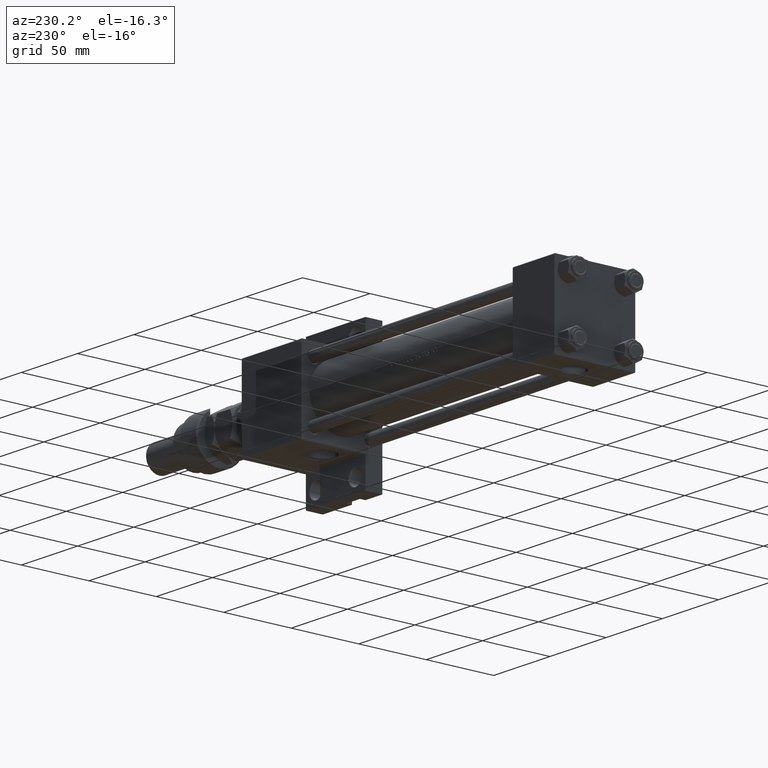
[diagram: clean part render]
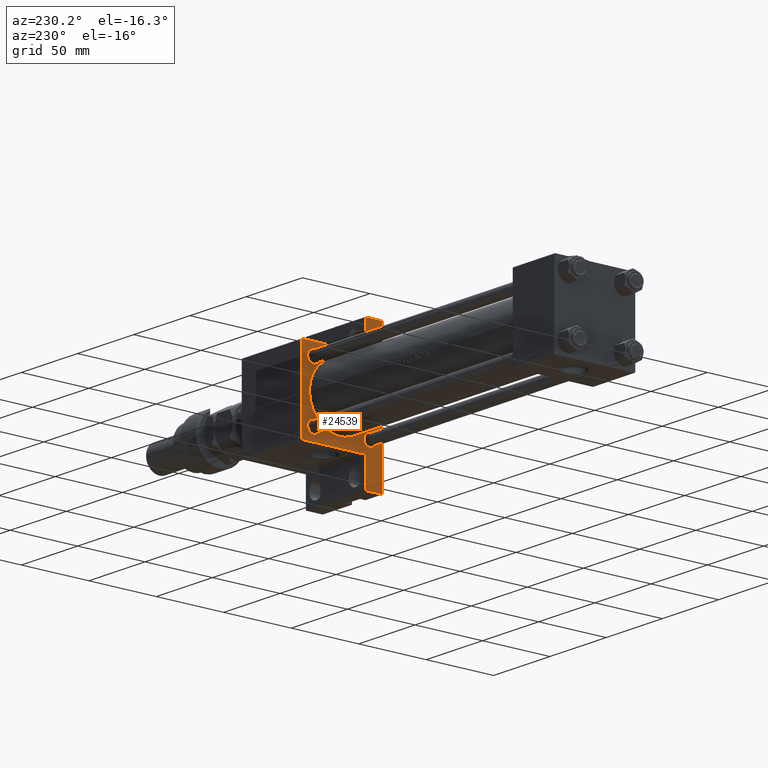
[diagram: same view with one face highlighted and labeled with its STEP entity id]
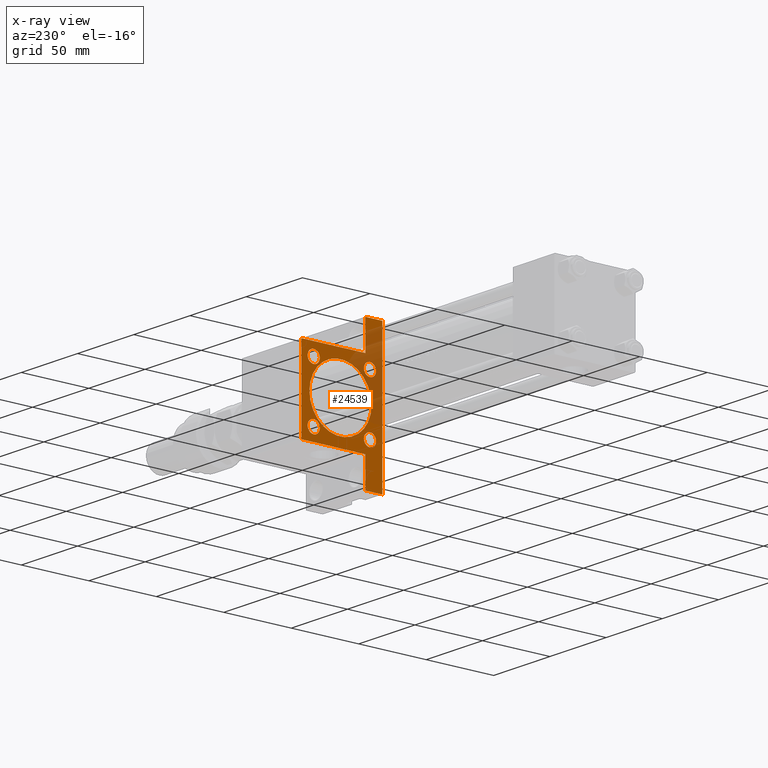
[diagram: x-ray of the same camera — body ghosted, the highlighted face saturated]
A machine part, auxiliary view. The second image highlights one B-rep face of the part: STEP entity #24539.
The next image is the same camera in x-ray: the body ghosted, the highlighted face saturated — about 31% of this face is hidden behind the body in this view.
In plain terms, the highlighted planar face has unit normal (-1, 0, -0).
Its self-contained STEP definition (entity closure, byte-faithful):
#173 = DIRECTION ( 'NONE',  ( 1.000000000000000000, -0.000000000000000000, 0.000000000000000000 ) ) ;
#483 = ORIENTED_EDGE ( 'NONE', *, *, #48150, .T. ) ;
#834 = CARTESIAN_POINT ( 'NONE',  ( 225.0000000000000000, -20.84999999999999076, 25.35000000000001208 ) ) ;
#995 = ORIENTED_EDGE ( 'NONE', *, *, #34506, .T. ) ;
#1176 = EDGE_CURVE ( 'NONE', #34826, #23365, #6389, .T. ) ;
#2941 = DIRECTION ( 'NONE',  ( -0.000000000000000000, 0.000000000000000000, 1.000000000000000000 ) ) ;
#2985 = CIRCLE ( 'NONE', #20336, 4.500000000000007105 ) ;
#3171 = ORIENTED_EDGE ( 'NONE', *, *, #6710, .T. ) ;
#3303 = CARTESIAN_POINT ( 'NONE',  ( 225.0000000000000000, 20.84999999999999787, -25.35000000000000853 ) ) ;
#3347 = CARTESIAN_POINT ( 'NONE',  ( 225.0000000000000000, -29.74999999999916156, 29.75000000000081712 ) ) ;
#3487 = FACE_OUTER_BOUND ( 'NONE', #17612, .T. ) ;
#3573 = EDGE_CURVE ( 'NONE', #20881, #5285, #26196, .T. ) ;
#3882 = DIRECTION ( 'NONE',  ( -0.000000000000000000, 0.7071067811865672237, 0.7071067811865279218 ) ) ;
#4227 = CARTESIAN_POINT ( 'NONE',  ( 225.0000000000000000, 20.84999999999999787, 25.35000000000000853 ) ) ;
#4373 = EDGE_CURVE ( 'NONE', #43402, #7562, #16726, .T. ) ;
#4453 = AXIS2_PLACEMENT_3D ( 'NONE', #20122, #33136, #7628 ) ;
#4509 = CARTESIAN_POINT ( 'NONE',  ( 225.0000000000000000, 2.694222958124176809E-15, -22.00000000000000000 ) ) ;
#4673 = CARTESIAN_POINT ( 'NONE',  ( 225.0000000000000000, 51.49999999999997868, -17.49999999999999645 ) ) ;
#4790 = CARTESIAN_POINT ( 'NONE',  ( 225.0000000000000000, -29.49999999999997158, 29.99999999999999289 ) ) ;
#4802 = VECTOR ( 'NONE', #3882, 1000.000000000000000 ) ;
#4946 = VECTOR ( 'NONE', #47039, 1000.000000000000114 ) ;
#5143 = CARTESIAN_POINT ( 'NONE',  ( 225.0000000000000000, -30.00000000000000000, 29.99999999999999289 ) ) ;
#5282 = DIRECTION ( 'NONE',  ( 0.000000000000000000, 0.000000000000000000, 1.000000000000000000 ) ) ;
#5285 = VERTEX_POINT ( 'NONE', #19863 ) ;
#5292 = CARTESIAN_POINT ( 'NONE',  ( 225.0000000000000000, 29.74999999999999645, 29.74999999999999645 ) ) ;
#6389 = LINE ( 'NONE', #38419, #52940 ) ;
#6576 = ORIENTED_EDGE ( 'NONE', *, *, #33346, .F. ) ;
#6710 = EDGE_CURVE ( 'NONE', #39010, #18106, #18442, .T. ) ;
#7237 = CARTESIAN_POINT ( 'NONE',  ( 225.0000000000000000, -20.84999999999999076, -16.34999999999999787 ) ) ;
#7562 = VERTEX_POINT ( 'NONE', #24100 ) ;
#7600 = EDGE_LOOP ( 'NONE', ( #9804, #34382 ) ) ;
#7628 = DIRECTION ( 'NONE',  ( 0.000000000000000000, 0.000000000000000000, 1.000000000000000000 ) ) ;
#7637 = ORIENTED_EDGE ( 'NONE', *, *, #10593, .T. ) ;
#7766 = VECTOR ( 'NONE', #48545, 1000.000000000000000 ) ;
#8174 = EDGE_LOOP ( 'NONE', ( #29534, #10919 ) ) ;
#8189 = CARTESIAN_POINT ( 'NONE',  ( 225.0000000000000000, -51.50000000000002132, -17.49999999999999645 ) ) ;
#9131 = EDGE_LOOP ( 'NONE', ( #29631, #483 ) ) ;
#9194 = VECTOR ( 'NONE', #52955, 1000.000000000000000 ) ;
#9275 = LINE ( 'NONE', #4673, #30111 ) ;
#9486 = CARTESIAN_POINT ( 'NONE',  ( 225.0000000000000000, -1.224646799147354686E-16, 1.000000000000000888 ) ) ;
#9738 = CARTESIAN_POINT ( 'NONE',  ( 225.0000000000000000, -20.84999999999999076, -20.85000000000000497 ) ) ;
#9804 = ORIENTED_EDGE ( 'NONE', *, *, #4373, .T. ) ;
#10015 = DIRECTION ( 'NONE',  ( 0.000000000000000000, -1.000000000000000000, -1.156482317317871478E-16 ) ) ;
#10536 = DIRECTION ( 'NONE',  ( 1.000000000000000000, -0.000000000000000000, 0.000000000000000000 ) ) ;
#10593 = EDGE_CURVE ( 'NONE', #25722, #51735, #20677, .T. ) ;
#10919 = ORIENTED_EDGE ( 'NONE', *, *, #19832, .T. ) ;
#11103 = ORIENTED_EDGE ( 'NONE', *, *, #37608, .T. ) ;
#11510 = DIRECTION ( 'NONE',  ( 1.000000000000000000, -0.000000000000000000, 0.000000000000000000 ) ) ;
#11629 = FACE_BOUND ( 'NONE', #26617, .T. ) ;
#11754 = CARTESIAN_POINT ( 'NONE',  ( 225.0000000000000000, 30.00000000000000000, 30.00000000000000000 ) ) ;
#11795 = CIRCLE ( 'NONE', #40368, 4.500000000000007105 ) ;
#11875 = DIRECTION ( 'NONE',  ( 1.000000000000000000, -0.000000000000000000, 0.000000000000000000 ) ) ;
#12319 = AXIS2_PLACEMENT_3D ( 'NONE', #45328, #38263, #42043 ) ;
#12363 = AXIS2_PLACEMENT_3D ( 'NONE', #45700, #48466, #16704 ) ;
#12856 = CARTESIAN_POINT ( 'NONE',  ( 225.0000000000000000, 51.49999999999997868, -17.49999999999999645 ) ) ;
#12882 = AXIS2_PLACEMENT_3D ( 'NONE', #16237, #11875, #28426 ) ;
#13413 = DIRECTION ( 'NONE',  ( 1.000000000000000000, -0.000000000000000000, 0.000000000000000000 ) ) ;
#13904 = VECTOR ( 'NONE', #41676, 1000.000000000000000 ) ;
#14043 = CARTESIAN_POINT ( 'NONE',  ( 225.0000000000000000, 51.49999999999997868, -29.99999999999999645 ) ) ;
#14082 = LINE ( 'NONE', #5143, #30783 ) ;
#14108 = LINE ( 'NONE', #30654, #40555 ) ;
#14723 = DIRECTION ( 'NONE',  ( 1.000000000000000000, -0.000000000000000000, 0.000000000000000000 ) ) ;
#15189 = FACE_BOUND ( 'NONE', #43117, .T. ) ;
#15496 = CARTESIAN_POINT ( 'NONE',  ( 225.0000000000000000, -51.50000000000002132, -17.49999999999999645 ) ) ;
#15975 = CARTESIAN_POINT ( 'NONE',  ( 225.0000000000000000, -1.224646799147354686E-16, 24.00000000000000000 ) ) ;
#16237 = CARTESIAN_POINT ( 'NONE',  ( 225.0000000000000000, 20.84999999999999787, -20.85000000000000142 ) ) ;
#16331 = CARTESIAN_POINT ( 'NONE',  ( 225.0000000000000000, -51.50000000000002132, -29.99999999999999645 ) ) ;
#16704 = DIRECTION ( 'NONE',  ( 0.000000000000000000, 0.000000000000000000, -1.000000000000000000 ) ) ;
#16726 = CIRCLE ( 'NONE', #4453, 4.500000000000007105 ) ;
#17612 = EDGE_LOOP ( 'NONE', ( #23938, #49227, #43704, #36671, #11103, #45032, #49441, #21210, #6576, #51666 ) ) ;
#17717 = DIRECTION ( 'NONE',  ( 0.000000000000000000, 0.000000000000000000, -1.000000000000000000 ) ) ;
#18106 = VERTEX_POINT ( 'NONE', #4509 ) ;
#18295 = CIRCLE ( 'NONE', #12319, 4.500000000000007105 ) ;
#18442 = CIRCLE ( 'NONE', #12363, 23.00000000000000000 ) ;
#18557 = CARTESIAN_POINT ( 'NONE',  ( 225.0000000000000000, 20.84999999999999787, -20.85000000000000142 ) ) ;
#18750 = VECTOR ( 'NONE', #49737, 1000.000000000000000 ) ;
#19114 = VERTEX_POINT ( 'NONE', #43355 ) ;
#19832 = EDGE_CURVE ( 'NONE', #46504, #23728, #18295, .T. ) ;
#19863 = CARTESIAN_POINT ( 'NONE',  ( 225.0000000000000000, -20.84999999999999076, -25.35000000000001208 ) ) ;
#19925 = LINE ( 'NONE', #11754, #9194 ) ;
#20068 = CARTESIAN_POINT ( 'NONE',  ( 225.0000000000000000, 0.000000000000000000, 0.000000000000000000 ) ) ;
#20122 = CARTESIAN_POINT ( 'NONE',  ( 225.0000000000000000, -20.84999999999999076, 20.85000000000000497 ) ) ;
#20333 = FACE_BOUND ( 'NONE', #9131, .T. ) ;
#20336 = AXIS2_PLACEMENT_3D ( 'NONE', #18557, #13413, #5282 ) ;
#20479 = DIRECTION ( 'NONE',  ( 0.000000000000000000, 0.000000000000000000, 1.000000000000000000 ) ) ;
#20605 = FACE_BOUND ( 'NONE', #7600, .T. ) ;
#20677 = CIRCLE ( 'NONE', #12882, 4.500000000000007105 ) ;
#20881 = VERTEX_POINT ( 'NONE', #7237 ) ;
#21210 = ORIENTED_EDGE ( 'NONE', *, *, #42722, .T. ) ;
#21622 = VERTEX_POINT ( 'NONE', #8189 ) ;
#21709 = DIRECTION ( 'NONE',  ( 0.000000000000000000, 0.000000000000000000, -1.000000000000000000 ) ) ;
#22185 = AXIS2_PLACEMENT_3D ( 'NONE', #22590, #14723, #48315 ) ;
#22590 = CARTESIAN_POINT ( 'NONE',  ( 225.0000000000000000, 20.84999999999999787, 20.85000000000000142 ) ) ;
#23365 = VERTEX_POINT ( 'NONE', #16331 ) ;
#23727 = LINE ( 'NONE', #3347, #4802 ) ;
#23728 = VERTEX_POINT ( 'NONE', #4227 ) ;
#23938 = ORIENTED_EDGE ( 'NONE', *, *, #39747, .F. ) ;
#24100 = CARTESIAN_POINT ( 'NONE',  ( 225.0000000000000000, -20.84999999999999076, 16.34999999999999787 ) ) ;
#24461 = VERTEX_POINT ( 'NONE', #35005 ) ;
#24539 = ADVANCED_FACE ( 'NONE', ( #20605, #52833, #15189, #20333, #11629, #3487 ), #49337, .T. ) ;
#25293 = VERTEX_POINT ( 'NONE', #31882 ) ;
#25441 = CARTESIAN_POINT ( 'NONE',  ( 225.0000000000000000, -20.84999999999999076, 20.85000000000000497 ) ) ;
#25722 = VERTEX_POINT ( 'NONE', #3303 ) ;
#26196 = CIRCLE ( 'NONE', #33134, 4.500000000000007105 ) ;
#26617 = EDGE_LOOP ( 'NONE', ( #3171, #995 ) ) ;
#28426 = DIRECTION ( 'NONE',  ( 0.000000000000000000, 0.000000000000000000, 1.000000000000000000 ) ) ;
#29134 = LINE ( 'NONE', #12856, #18750 ) ;
#29534 = ORIENTED_EDGE ( 'NONE', *, *, #30822, .T. ) ;
#29631 = ORIENTED_EDGE ( 'NONE', *, *, #3573, .T. ) ;
#29719 = CARTESIAN_POINT ( 'NONE',  ( 225.0000000000000000, 20.84999999999999787, -16.34999999999999432 ) ) ;
#30111 = VECTOR ( 'NONE', #17717, 1000.000000000000000 ) ;
#30654 = CARTESIAN_POINT ( 'NONE',  ( 225.0000000000000000, 30.00000000000000000, 30.00000000000000000 ) ) ;
#30783 = VECTOR ( 'NONE', #21709, 1000.000000000000000 ) ;
#30822 = EDGE_CURVE ( 'NONE', #23728, #46504, #48992, .T. ) ;
#30912 = DIRECTION ( 'NONE',  ( 0.000000000000000000, 0.000000000000000000, -1.000000000000000000 ) ) ;
#31655 = EDGE_CURVE ( 'NONE', #37210, #51515, #29134, .T. ) ;
#31882 = CARTESIAN_POINT ( 'NONE',  ( 225.0000000000000000, -30.00000000000000000, 29.49999999999999289 ) ) ;
#33134 = AXIS2_PLACEMENT_3D ( 'NONE', #9738, #10536, #46645 ) ;
#33136 = DIRECTION ( 'NONE',  ( 1.000000000000000000, -0.000000000000000000, 0.000000000000000000 ) ) ;
#33305 = CARTESIAN_POINT ( 'NONE',  ( 225.0000000000000000, -51.50000000000002132, -17.49999999999999645 ) ) ;
#33346 = EDGE_CURVE ( 'NONE', #25293, #24461, #14082, .T. ) ;
#34072 = AXIS2_PLACEMENT_3D ( 'NONE', #20068, #37158, #2941 ) ;
#34382 = ORIENTED_EDGE ( 'NONE', *, *, #45162, .T. ) ;
#34506 = EDGE_CURVE ( 'NONE', #18106, #39010, #48101, .T. ) ;
#34826 = VERTEX_POINT ( 'NONE', #14043 ) ;
#34857 = LINE ( 'NONE', #5292, #4946 ) ;
#34887 = DIRECTION ( 'NONE',  ( 0.000000000000000000, -1.000000000000000000, -1.156482317317871478E-16 ) ) ;
#34999 = CARTESIAN_POINT ( 'NONE',  ( 225.0000000000000000, 20.84999999999999787, 16.34999999999999432 ) ) ;
#35005 = CARTESIAN_POINT ( 'NONE',  ( 225.0000000000000000, -30.00000000000000000, -17.49999999999999645 ) ) ;
#35044 = EDGE_CURVE ( 'NONE', #35814, #37210, #19925, .T. ) ;
#35814 = VERTEX_POINT ( 'NONE', #50392 ) ;
#36671 = ORIENTED_EDGE ( 'NONE', *, *, #31655, .T. ) ;
#37126 = ORIENTED_EDGE ( 'NONE', *, *, #45456, .T. ) ;
#37158 = DIRECTION ( 'NONE',  ( -1.000000000000000000, 0.000000000000000000, -0.000000000000000000 ) ) ;
#37210 = VERTEX_POINT ( 'NONE', #50832 ) ;
#37378 = EDGE_CURVE ( 'NONE', #19114, #35814, #34857, .T. ) ;
#37608 = EDGE_CURVE ( 'NONE', #51515, #34826, #9275, .T. ) ;
#38263 = DIRECTION ( 'NONE',  ( 1.000000000000000000, -0.000000000000000000, 0.000000000000000000 ) ) ;
#38419 = CARTESIAN_POINT ( 'NONE',  ( 225.0000000000000000, 30.00000000000000000, -29.99999999999999289 ) ) ;
#38727 = CARTESIAN_POINT ( 'NONE',  ( 225.0000000000000000, 51.49999999999997868, -17.49999999999999645 ) ) ;
#39010 = VERTEX_POINT ( 'NONE', #15975 ) ;
#39747 = EDGE_CURVE ( 'NONE', #19114, #43974, #14108, .T. ) ;
#40368 = AXIS2_PLACEMENT_3D ( 'NONE', #45168, #11510, #20479 ) ;
#40555 = VECTOR ( 'NONE', #10015, 1000.000000000000000 ) ;
#41676 = DIRECTION ( 'NONE',  ( 0.000000000000000000, 0.000000000000000000, -1.000000000000000000 ) ) ;
#41958 = DIRECTION ( 'NONE',  ( 0.000000000000000000, 0.000000000000000000, 1.000000000000000000 ) ) ;
#42043 = DIRECTION ( 'NONE',  ( 0.000000000000000000, 0.000000000000000000, 1.000000000000000000 ) ) ;
#42722 = EDGE_CURVE ( 'NONE', #21622, #24461, #53130, .T. ) ;
#43117 = EDGE_LOOP ( 'NONE', ( #37126, #7637 ) ) ;
#43355 = CARTESIAN_POINT ( 'NONE',  ( 225.0000000000000000, 29.50000000000000000, 30.00000000000000000 ) ) ;
#43402 = VERTEX_POINT ( 'NONE', #834 ) ;
#43704 = ORIENTED_EDGE ( 'NONE', *, *, #35044, .T. ) ;
#43960 = EDGE_CURVE ( 'NONE', #21622, #23365, #46024, .T. ) ;
#43974 = VERTEX_POINT ( 'NONE', #4790 ) ;
#45032 = ORIENTED_EDGE ( 'NONE', *, *, #1176, .T. ) ;
#45162 = EDGE_CURVE ( 'NONE', #7562, #43402, #51488, .T. ) ;
#45168 = CARTESIAN_POINT ( 'NONE',  ( 225.0000000000000000, -20.84999999999999076, -20.85000000000000497 ) ) ;
#45328 = CARTESIAN_POINT ( 'NONE',  ( 225.0000000000000000, 20.84999999999999787, 20.85000000000000142 ) ) ;
#45456 = EDGE_CURVE ( 'NONE', #51735, #25722, #2985, .T. ) ;
#45700 = CARTESIAN_POINT ( 'NONE',  ( 225.0000000000000000, -1.224646799147354686E-16, 1.000000000000000888 ) ) ;
#46024 = LINE ( 'NONE', #33305, #13904 ) ;
#46119 = EDGE_CURVE ( 'NONE', #25293, #43974, #23727, .T. ) ;
#46504 = VERTEX_POINT ( 'NONE', #34999 ) ;
#46645 = DIRECTION ( 'NONE',  ( 0.000000000000000000, 0.000000000000000000, 1.000000000000000000 ) ) ;
#47039 = DIRECTION ( 'NONE',  ( 0.000000000000000000, 0.7071067811865474617, -0.7071067811865474617 ) ) ;
#48101 = CIRCLE ( 'NONE', #48986, 23.00000000000000000 ) ;
#48150 = EDGE_CURVE ( 'NONE', #5285, #20881, #11795, .T. ) ;
#48315 = DIRECTION ( 'NONE',  ( 0.000000000000000000, 0.000000000000000000, 1.000000000000000000 ) ) ;
#48466 = DIRECTION ( 'NONE',  ( 1.000000000000000000, 0.000000000000000000, 0.000000000000000000 ) ) ;
#48545 = DIRECTION ( 'NONE',  ( 0.000000000000000000, 1.000000000000000000, 0.000000000000000000 ) ) ;
#48986 = AXIS2_PLACEMENT_3D ( 'NONE', #9486, #51227, #30912 ) ;
#48992 = CIRCLE ( 'NONE', #22185, 4.500000000000007105 ) ;
#49227 = ORIENTED_EDGE ( 'NONE', *, *, #37378, .T. ) ;
#49337 = PLANE ( 'NONE',  #34072 ) ;
#49441 = ORIENTED_EDGE ( 'NONE', *, *, #43960, .F. ) ;
#49737 = DIRECTION ( 'NONE',  ( -1.290957005378090308E-15, 1.000000000000000000, -0.000000000000000000 ) ) ;
#50392 = CARTESIAN_POINT ( 'NONE',  ( 225.0000000000000000, 30.00000000000000000, 29.50000000000000000 ) ) ;
#50832 = CARTESIAN_POINT ( 'NONE',  ( 225.0000000000000000, 30.00000000000000000, -17.49999999999998224 ) ) ;
#51227 = DIRECTION ( 'NONE',  ( 1.000000000000000000, 0.000000000000000000, 0.000000000000000000 ) ) ;
#51488 = CIRCLE ( 'NONE', #53223, 4.500000000000007105 ) ;
#51515 = VERTEX_POINT ( 'NONE', #38727 ) ;
#51666 = ORIENTED_EDGE ( 'NONE', *, *, #46119, .T. ) ;
#51735 = VERTEX_POINT ( 'NONE', #29719 ) ;
#52833 = FACE_BOUND ( 'NONE', #8174, .T. ) ;
#52940 = VECTOR ( 'NONE', #34887, 1000.000000000000000 ) ;
#52955 = DIRECTION ( 'NONE',  ( 0.000000000000000000, 0.000000000000000000, -1.000000000000000000 ) ) ;
#53130 = LINE ( 'NONE', #15496, #7766 ) ;
#53223 = AXIS2_PLACEMENT_3D ( 'NONE', #25441, #173, #41958 ) ;